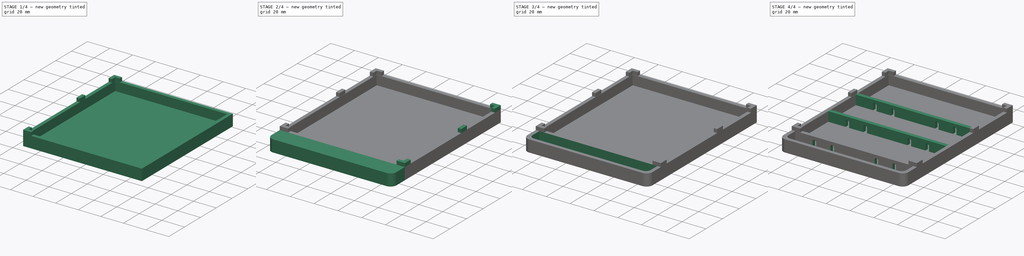
[diagram: build sequence overview — one tinted view per stage of 4, left to right]
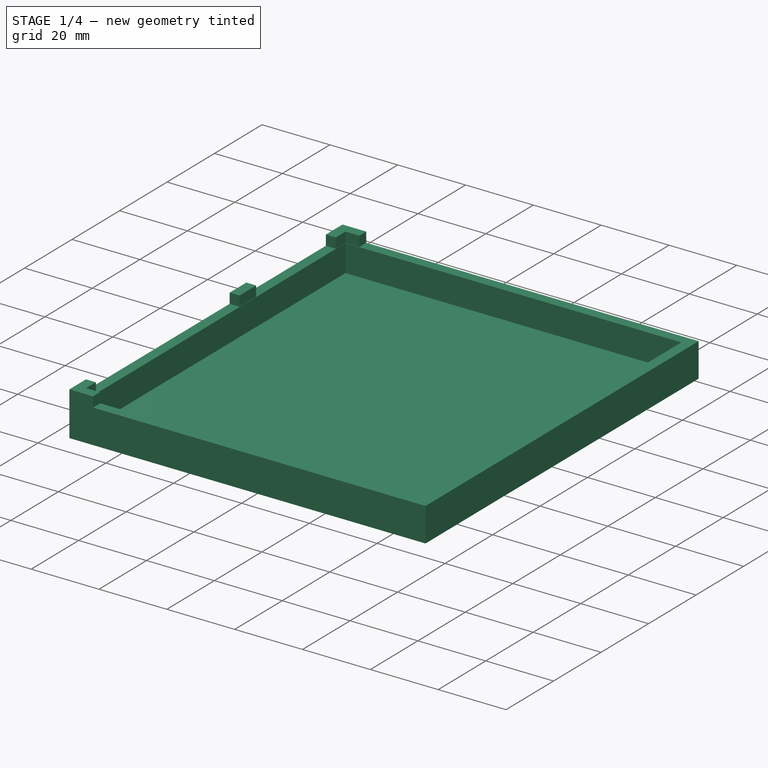
[diagram: stage 1 of 4 — iso view after this stage's code; geometry added in this stage tinted green]
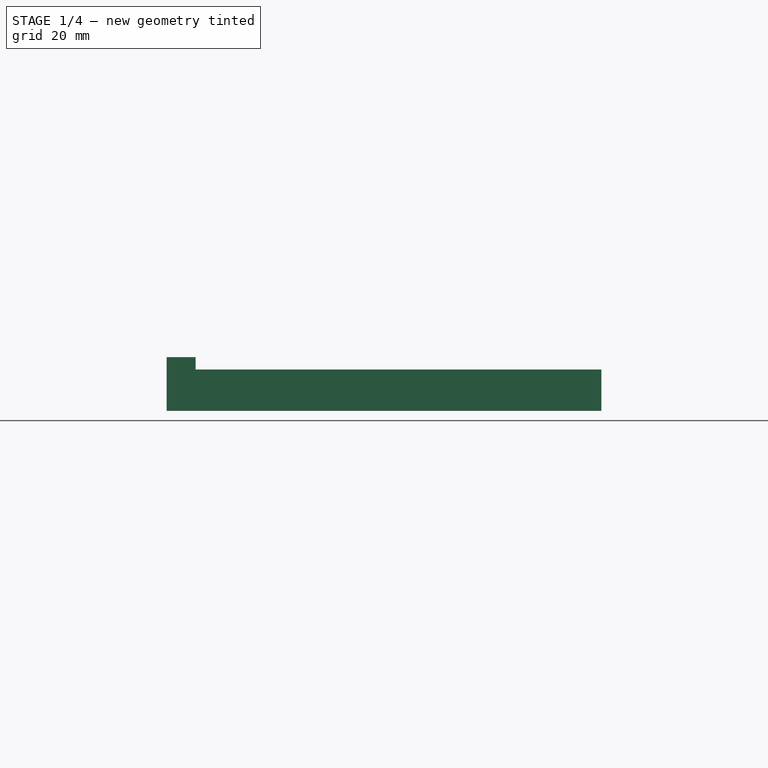
[diagram: stage 1 of 4 — front view after this stage's code; geometry added in this stage tinted green]
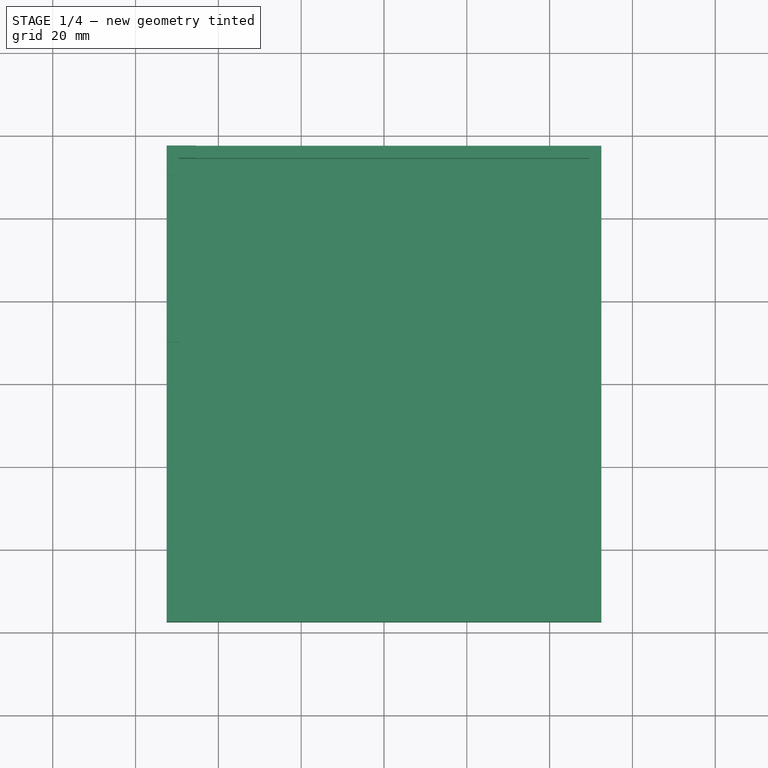
[diagram: stage 1 of 4 — top view after this stage's code; geometry added in this stage tinted green]
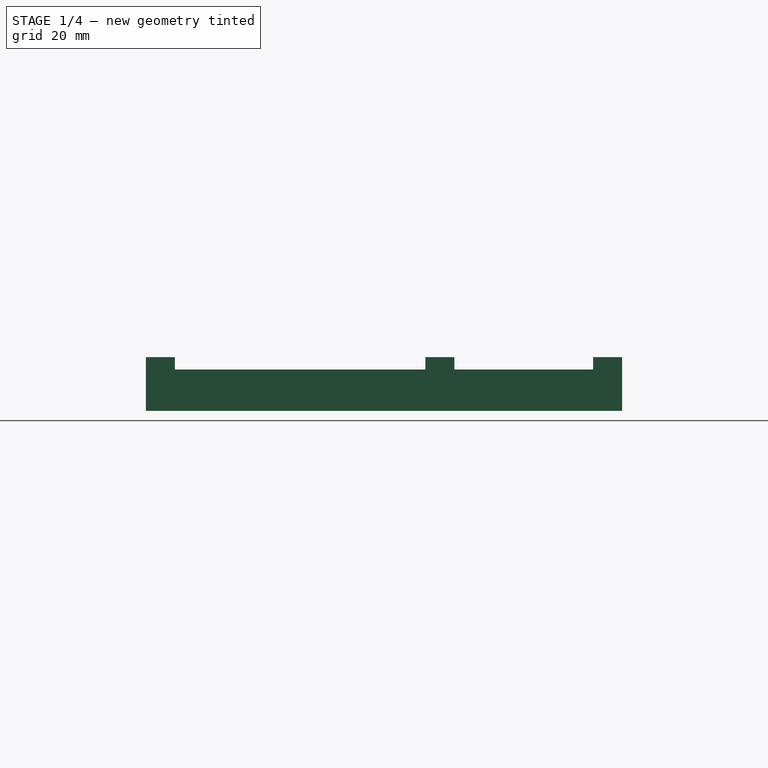
[diagram: stage 1 of 4 — right view after this stage's code; geometry added in this stage tinted green]
FCSTD DOCUMENT  (FreeCAD 0.18R16146 (Git))
Label: Formicarium_basin_M
License: All rights reserved
LicenseURL: http://en.wikipedia.org/wiki/All_rights_reserved
objects: Sketcher::SketchObject×7, PartDesign::Pad×4, PartDesign::Pocket×3, PartDesign::Mirrored×2, PartDesign::Fillet×2, PartDesign::ShapeBinder×1, PartDesign::Body×1
note: 27 computed .brp shape members not serialized (recipe doc carries the construction recipe); baked Part::Feature solids carry a one-line shape summary decoded from their .brp

FEATURE [PartDesign::ShapeBinder] ShapeBinder
  TraceSupport = false
FEATURE [Sketcher::SketchObject] Sketch013
  MapMode = 5
  Support = -> [XY_Plane001]
  sketch-geometry (4):
    g0: LineSegment StartX=-52.5 StartY=57.5 StartZ=0 EndX=52.5 EndY=57.5 EndZ=0
    g1: LineSegment StartX=52.5 StartY=57.5 StartZ=0 EndX=52.5 EndY=-57.5 EndZ=0
    g2: LineSegment StartX=52.5 StartY=-57.5 StartZ=0 EndX=-52.5 EndY=-57.5 EndZ=0
    g3: LineSegment StartX=-52.5 StartY=-57.5 StartZ=0 EndX=-52.5 EndY=57.5 EndZ=0
  constraints (10):
    c: Coincident(g0,g1)
    c: Coincident(g1,g2)
    c: Coincident(g2,g3)
    c: Coincident(g3,g0)
    c: Horizontal(g2)
    c: Vertical(g1)
    c: DistanceY(g1,g1) = 115
    c: DistanceX(g0,g0) = 105
    c: Symmetric(g0,g2,g-1)
    c: Symmetric(g0,g0,g-2)
FEATURE [PartDesign::Pad] Pad002
  Length = 10
  Length2 = 100
  Profile = -> Sketch013
  Reversed = true
  Type = 0
FEATURE [Sketcher::SketchObject] Sketch015
  MapMode = 5
  Support = -> [Pad002]
  sketch-geometry (4):
    g0: LineSegment StartX=-49.5 StartY=54.5 StartZ=0 EndX=49.5 EndY=54.5 EndZ=0
    g1: LineSegment StartX=49.5 StartY=54.5 StartZ=0 EndX=49.5 EndY=-54.5 EndZ=0
    g2: LineSegment StartX=49.5 StartY=-54.5 StartZ=0 EndX=-49.5 EndY=-54.5 EndZ=0
    g3: LineSegment StartX=-49.5 StartY=-54.5 StartZ=0 EndX=-49.5 EndY=54.5 EndZ=0
  constraints (10):
    c: Coincident(g0,g1)
    c: Coincident(g1,g2)
    c: Coincident(g2,g3)
    c: Coincident(g3,g0)
    c: Horizontal(g0)
    c: Vertical(g3)
    c: DistanceX(g2,g2) = 99
    c: DistanceY(g1,g1) = 109
    c: Symmetric(g0,g1,g-1)
    c: Symmetric(g2,g1,g-2)
FEATURE [PartDesign::Pocket] Pocket011
  BaseFeature = -> Pad002
  Length = 8
  Length2 = 100
  Profile = -> Sketch015
  Type = 0
FEATURE [Sketcher::SketchObject] Sketch016
  MapMode = 5
  Support = -> [Pocket011]
  sketch-geometry (16):
    g0: LineSegment StartX=-52.5 StartY=50.5 StartZ=0 EndX=-52.5 EndY=57.5 EndZ=0
    g1: LineSegment StartX=-52.5 StartY=57.5 StartZ=0 EndX=-45.5 EndY=57.5 EndZ=0
    g2: LineSegment StartX=-45.5 StartY=57.5 StartZ=0 EndX=-45.5 EndY=54.6 EndZ=0
    g3: LineSegment StartX=-45.5 StartY=54.6 StartZ=0 EndX=-49.6 EndY=54.6 EndZ=0
    g4: LineSegment StartX=-49.6 StartY=54.6 StartZ=0 EndX=-49.6 EndY=50.5 EndZ=0
    g5: LineSegment StartX=-49.6 StartY=50.5 StartZ=0 EndX=-52.5 EndY=50.5 EndZ=0
    g6: LineSegment StartX=-52.5 StartY=17 StartZ=0 EndX=-49.6 EndY=17 EndZ=0
    g7: LineSegment StartX=-49.6 StartY=17 StartZ=0 EndX=-49.6 EndY=10 EndZ=0
    g8: LineSegment StartX=-49.6 StartY=10 StartZ=0 EndX=-52.5 EndY=10 EndZ=0
    g9: LineSegment StartX=-52.5 StartY=10 StartZ=0 EndX=-52.5 EndY=17 EndZ=0
    g10: LineSegment StartX=-49.6 StartY=-50.5 StartZ=0 EndX=-49.6 EndY=-54.6 EndZ=0
    g11: LineSegment StartX=-49.6 StartY=-54.6 StartZ=0 EndX=-45.5 EndY=-54.6 EndZ=0
    g12: LineSegment StartX=-45.5 StartY=-54.6 StartZ=0 EndX=-45.5 EndY=-57.5 EndZ=0
    g13: LineSegment StartX=-45.5 StartY=-57.5 StartZ=0 EndX=-52.5 EndY=-57.5 EndZ=0
    g14: LineSegment StartX=-52.5 StartY=-57.5 StartZ=0 EndX=-52.5 EndY=-50.5 EndZ=0
    g15: LineSegment StartX=-52.5 StartY=-50.5 StartZ=0 EndX=-49.6 EndY=-50.5 EndZ=0
  constraints (48):
    c: Coincident(g0,g1)
    c: Coincident(g1,g2)
    c: Coincident(g2,g3)
    c: Coincident(g3,g4)
    c: Coincident(g4,g5)
    c: Coincident(g5,g0)
    c: Vertical(g4)
    c: Vertical(g0)
    c: Vertical(g2)
    c: Horizontal(g1)
    c: Horizontal(g5)
    c: Horizontal(g3)
    c: DistanceX(g0,g-1) = 52.5
    c: DistanceY(g-1,g0) = 57.5
    c: DistanceX(g1,g1) = 7
    c: DistanceY(g0,g0) = 7
    c: Equal(g4,g3)
    c: DistanceX(g5,g5) = 2.9
    c: Coincident(g6,g7)
    c: Coincident(g7,g8)
    c: Coincident(g8,g9)
    c: Coincident(g9,g6)
    c: Horizontal(g6)
    c: Horizontal(g8)
    c: Vertical(g9)
    c: DistanceX(g8,g8) = 2.9
    c: DistanceY(g9,g9) = 7
    c: Coincident(g10,g11)
    c: Coincident(g11,g12)
    c: Coincident(g12,g13)
    c: Coincident(g13,g14)
    c: Coincident(g14,g15)
    c: Coincident(g15,g10)
    c: Horizontal(g15)
    c: Horizontal(g11)
    c: Horizontal(g13)
    c: Vertical(g10)
    c: Vertical(g14)
    c: Vertical(g12)
    c: DistanceY(g14,g14) = 7
    c: Equal(g13,g14)
    c: DistanceX(g15,g15) = 2.9
    c: Equal(g15,g12)
    c: DistanceY(g13) = -57.5
    c: Vertical(g14,g6)
    c: Vertical(g6,g0)
    c: DistanceY(g-1,g6) = 17
    c: Equal(g8,g6)
FEATURE [PartDesign::Pad] Pad003
  BaseFeature = -> Pocket011
  Length = 2.99
  Length2 = 100
  Profile = -> Sketch016
  Type = 0
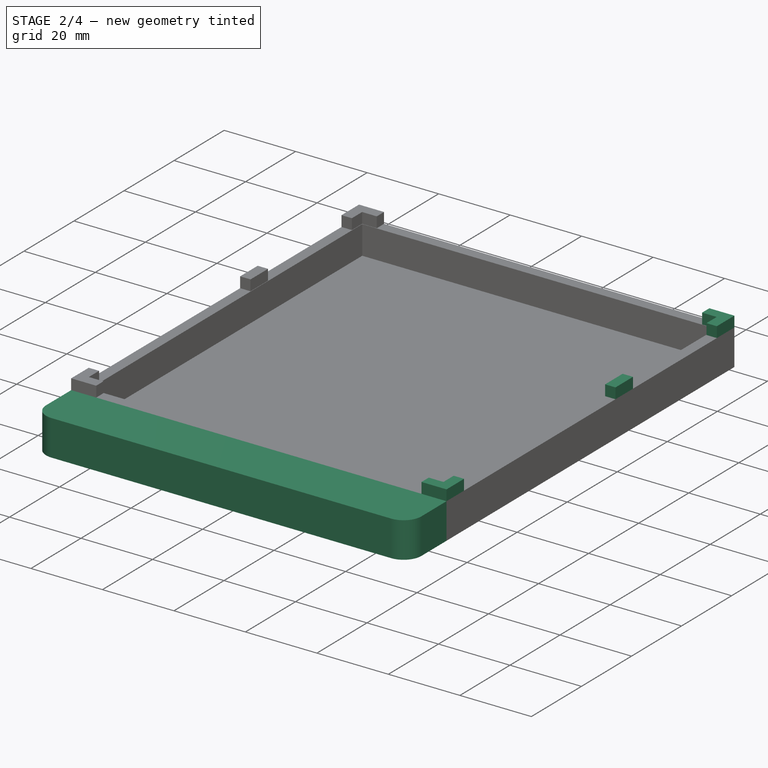
[diagram: stage 2 of 4 — iso view after this stage's code; geometry added in this stage tinted green]
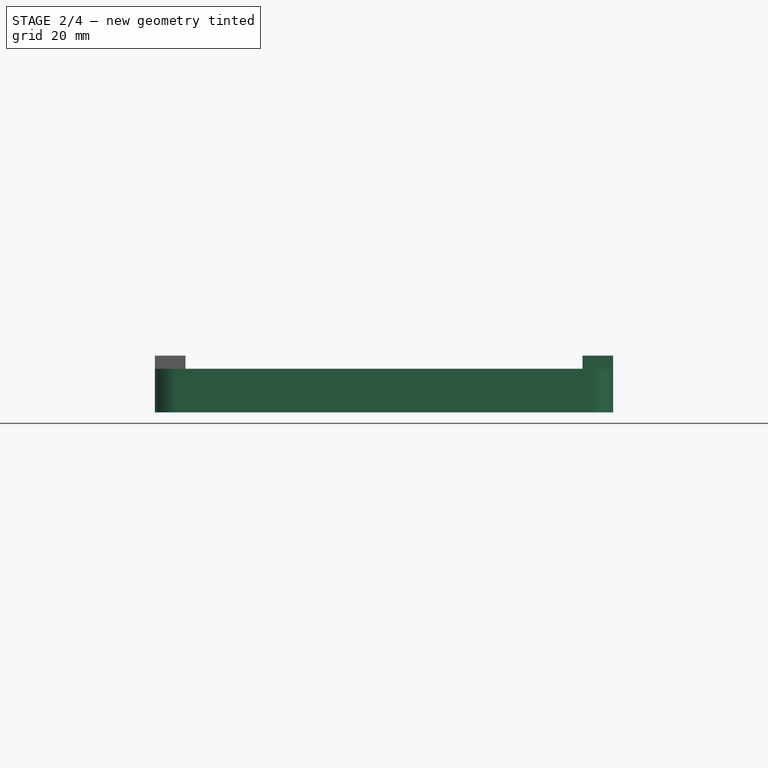
[diagram: stage 2 of 4 — front view after this stage's code; geometry added in this stage tinted green]
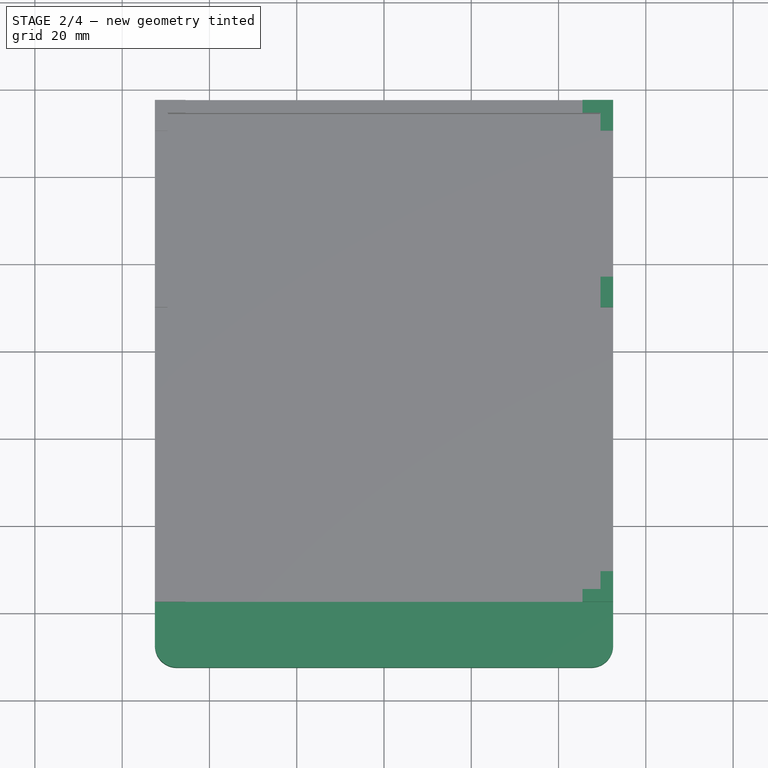
[diagram: stage 2 of 4 — top view after this stage's code; geometry added in this stage tinted green]
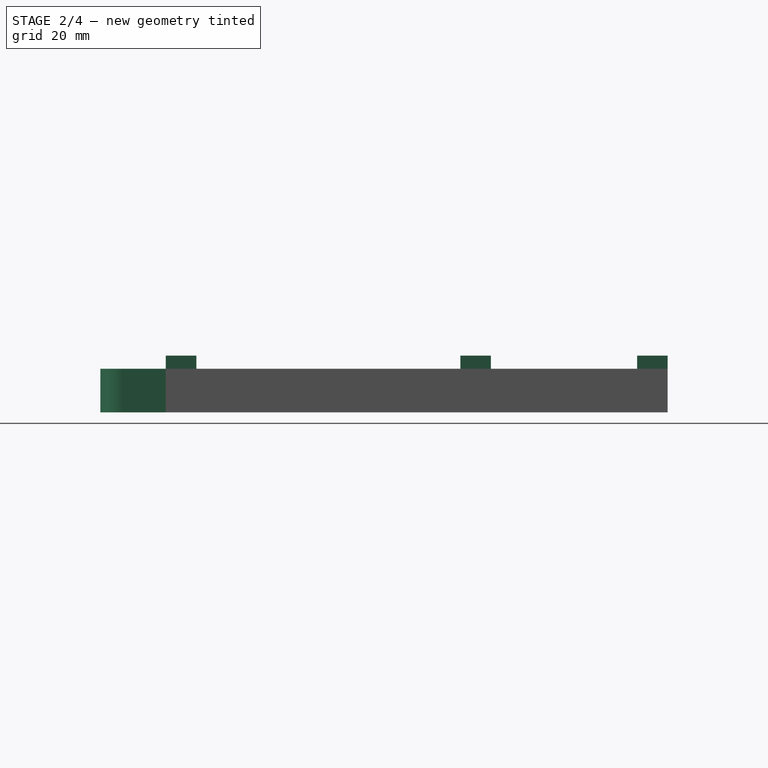
[diagram: stage 2 of 4 — right view after this stage's code; geometry added in this stage tinted green]
FEATURE [PartDesign::Mirrored] Mirrored002
  BaseFeature = -> Pad003
  MirrorPlane = -> Sketch016 [V_Axis]
  Originals = -> [Pad003]
FEATURE [Sketcher::SketchObject] Sketch017
  MapMode = 5
  Support = -> [XY_Plane001]
  sketch-geometry (4):
    g0: LineSegment StartX=-52.5 StartY=-57.5 StartZ=0 EndX=52.5 EndY=-57.5 EndZ=0
    g1: LineSegment StartX=52.5 StartY=-57.5 StartZ=0 EndX=52.5 EndY=-72.5 EndZ=0
    g2: LineSegment StartX=52.5 StartY=-72.5 StartZ=0 EndX=-52.5 EndY=-72.5 EndZ=0
    g3: LineSegment StartX=-52.5 StartY=-72.5 StartZ=0 EndX=-52.5 EndY=-57.5 EndZ=0
  constraints (11):
    c: Coincident(g0,g1)
    c: Coincident(g1,g2)
    c: Coincident(g2,g3)
    c: Coincident(g3,g0)
    c: Horizontal(g0)
    c: Vertical(g1)
    c: Vertical(g3)
    c: DistanceY(g1,g1) = 15
    c: DistanceX(g0,g0) = 105
    c: Symmetric(g1,g2,g-2)
    c: DistanceY(g0,g-1) = 57.5
FEATURE [PartDesign::Pad] Pad004
  BaseFeature = -> Mirrored002
  Length = 10
  Length2 = 100
  Profile = -> Sketch017
  Reversed = true
  Type = 0
FEATURE [PartDesign::Fillet] Fillet
  Base = -> Pad004 [Edge55,Edge66]
  BaseFeature = -> Pad004
  Radius = 5
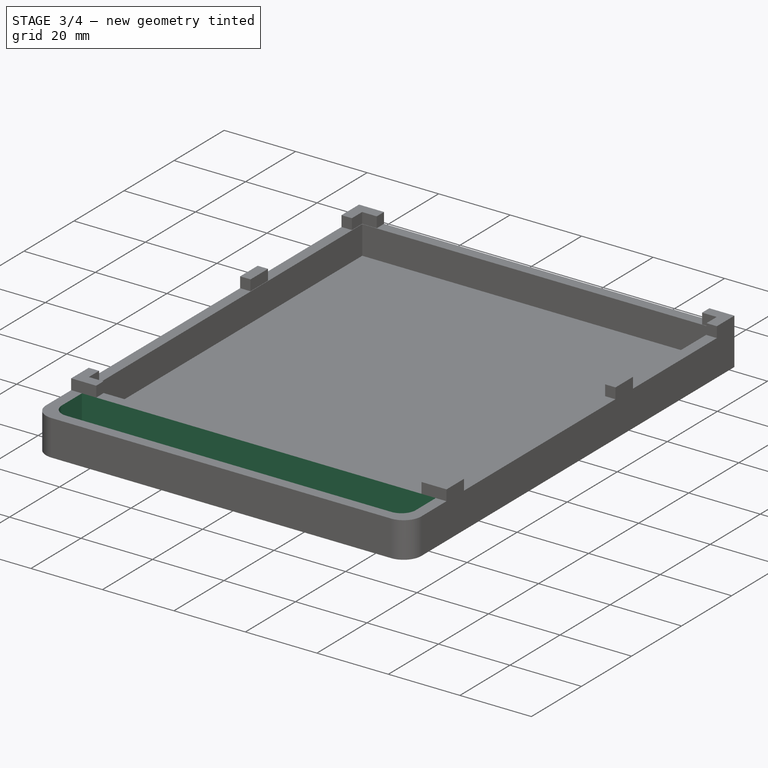
[diagram: stage 3 of 4 — iso view after this stage's code; geometry added in this stage tinted green]
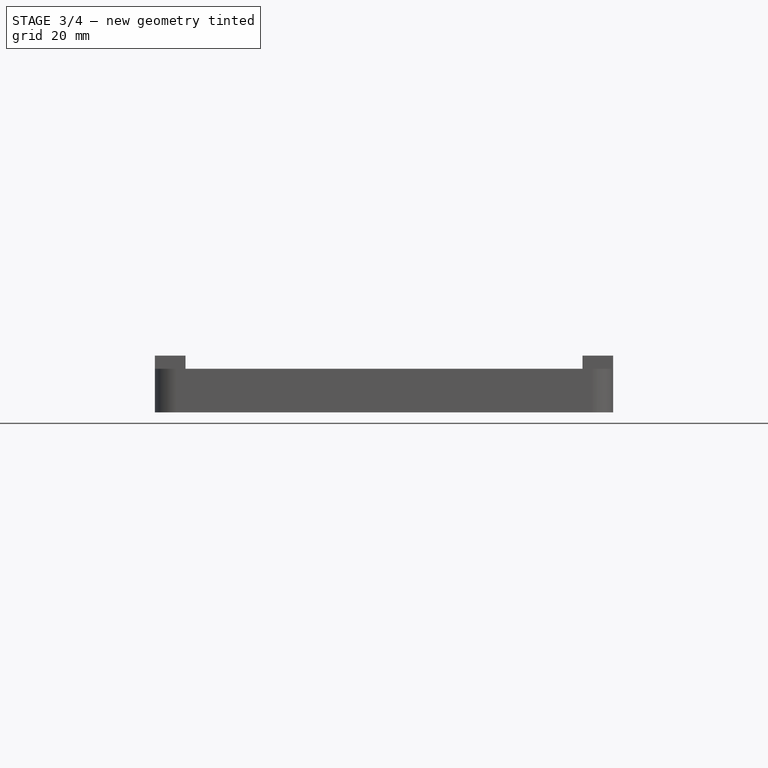
[diagram: stage 3 of 4 — front view after this stage's code; geometry added in this stage tinted green]
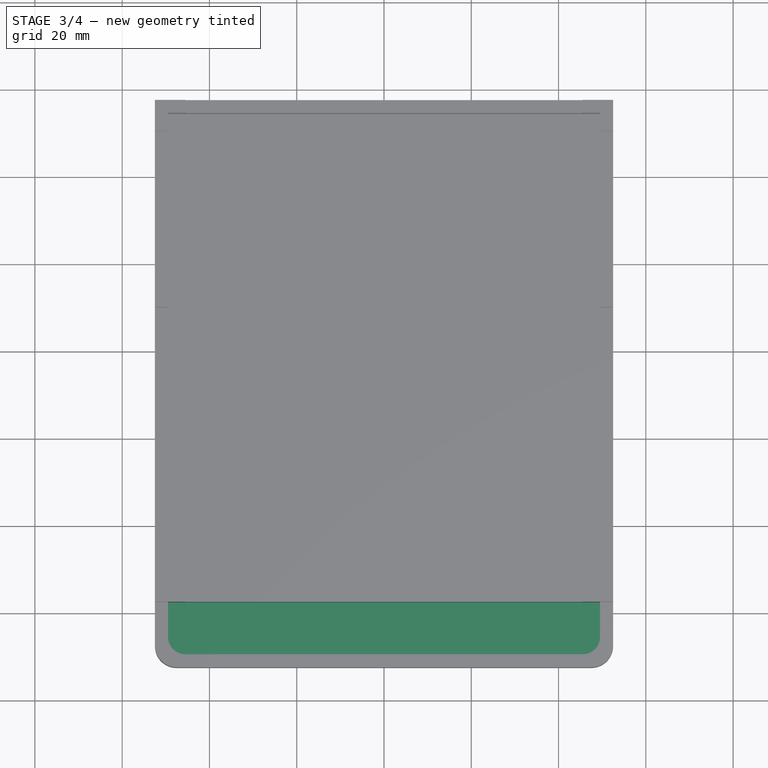
[diagram: stage 3 of 4 — top view after this stage's code; geometry added in this stage tinted green]
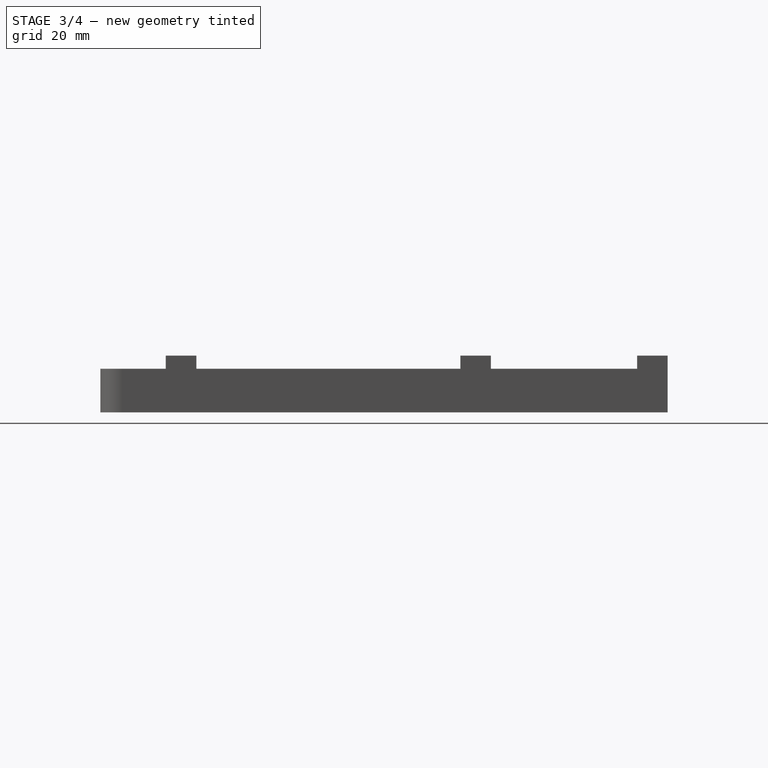
[diagram: stage 3 of 4 — right view after this stage's code; geometry added in this stage tinted green]
FEATURE [Sketcher::SketchObject] Sketch018
  MapMode = 5
  Support = -> [Fillet]
  sketch-geometry (4):
    g0: LineSegment StartX=-49.5 StartY=-57.5 StartZ=0 EndX=49.5 EndY=-57.5 EndZ=0
    g1: LineSegment StartX=49.5 StartY=-57.5 StartZ=0 EndX=49.5 EndY=-69.5 EndZ=0
    g2: LineSegment StartX=49.5 StartY=-69.5 StartZ=0 EndX=-49.5 EndY=-69.5 EndZ=0
    g3: LineSegment StartX=-49.5 StartY=-69.5 StartZ=0 EndX=-49.5 EndY=-57.5 EndZ=0
  constraints (11):
    c: Coincident(g0,g1)
    c: Coincident(g1,g2)
    c: Coincident(g2,g3)
    c: Coincident(g3,g0)
    c: Horizontal(g0)
    c: Vertical(g1)
    c: Vertical(g3)
    c: DistanceY(g1,g1) = 12
    c: DistanceX(g2,g2) = 99
    c: Symmetric(g1,g2,g-2)
    c: DistanceY(g0,g-1) = 57.5
FEATURE [PartDesign::Pocket] Pocket012
  BaseFeature = -> Fillet
  Length = 8
  Length2 = 100
  Profile = -> Sketch018
  Type = 0
FEATURE [PartDesign::Fillet] Fillet001
  Base = -> Pocket012 [Edge36,Edge34]
  BaseFeature = -> Pocket012
  Radius = 4
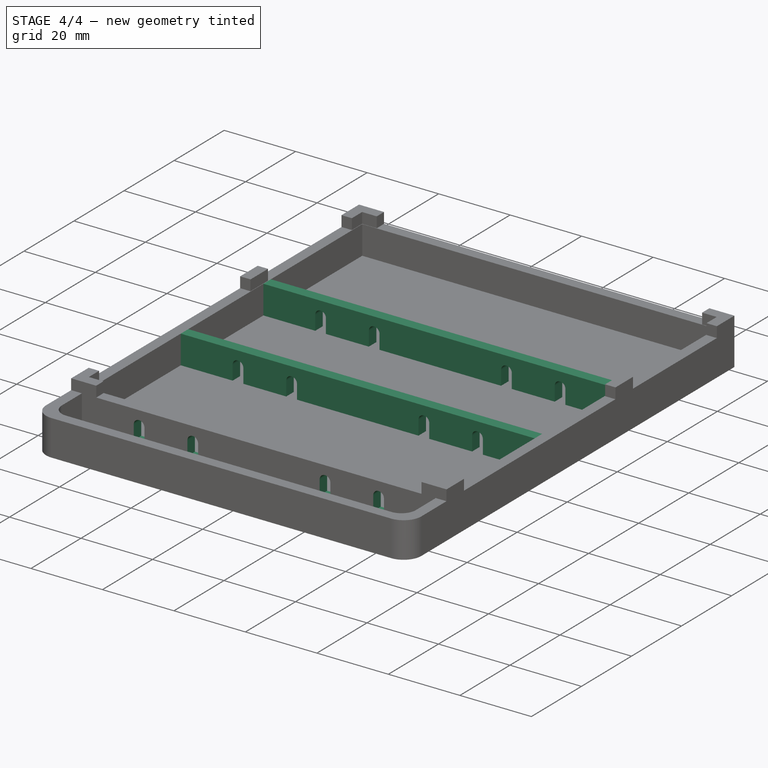
[diagram: stage 4 of 4 — iso view after this stage's code; geometry added in this stage tinted green]
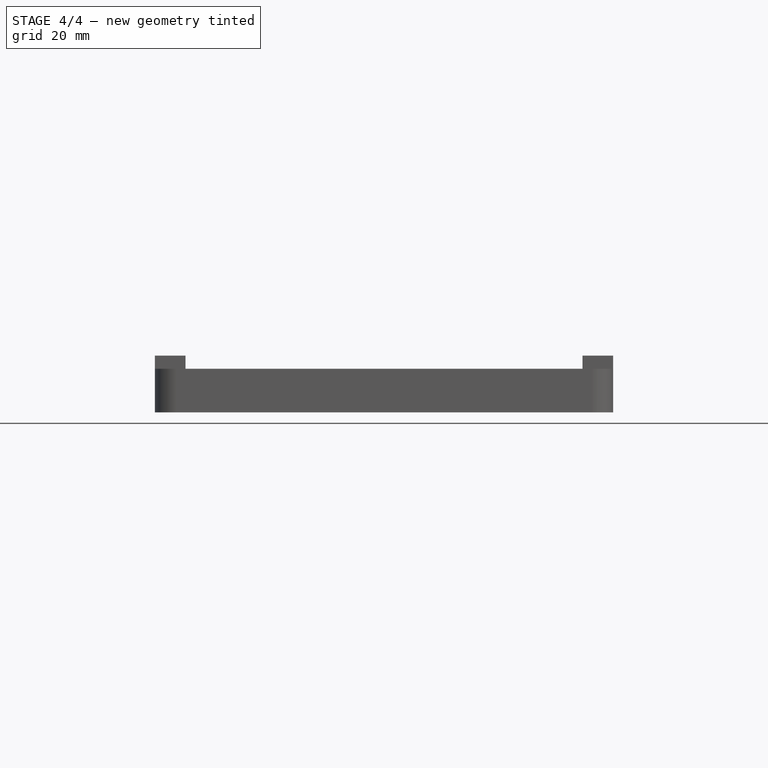
[diagram: stage 4 of 4 — front view after this stage's code; geometry added in this stage tinted green]
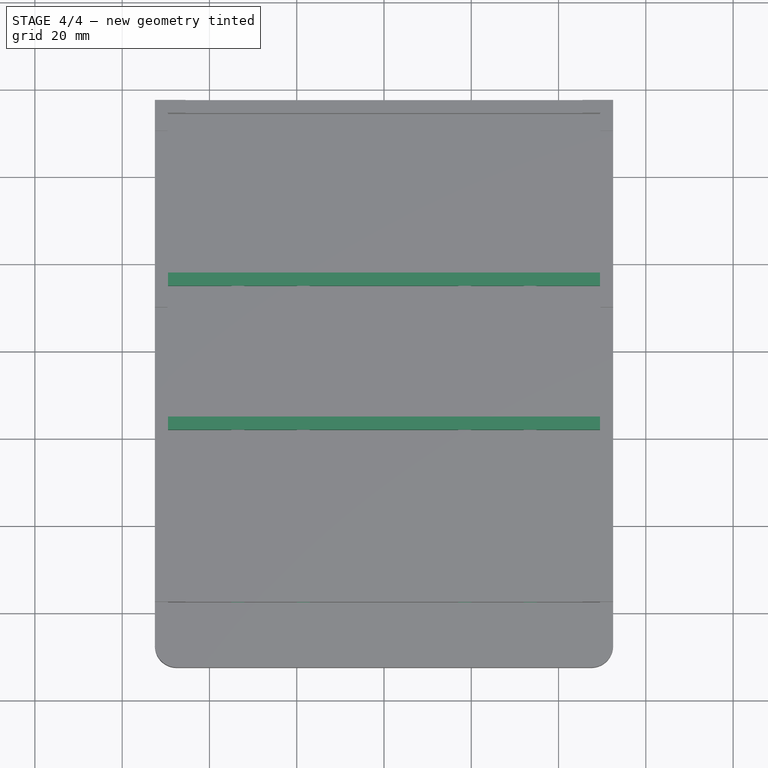
[diagram: stage 4 of 4 — top view after this stage's code; geometry added in this stage tinted green]
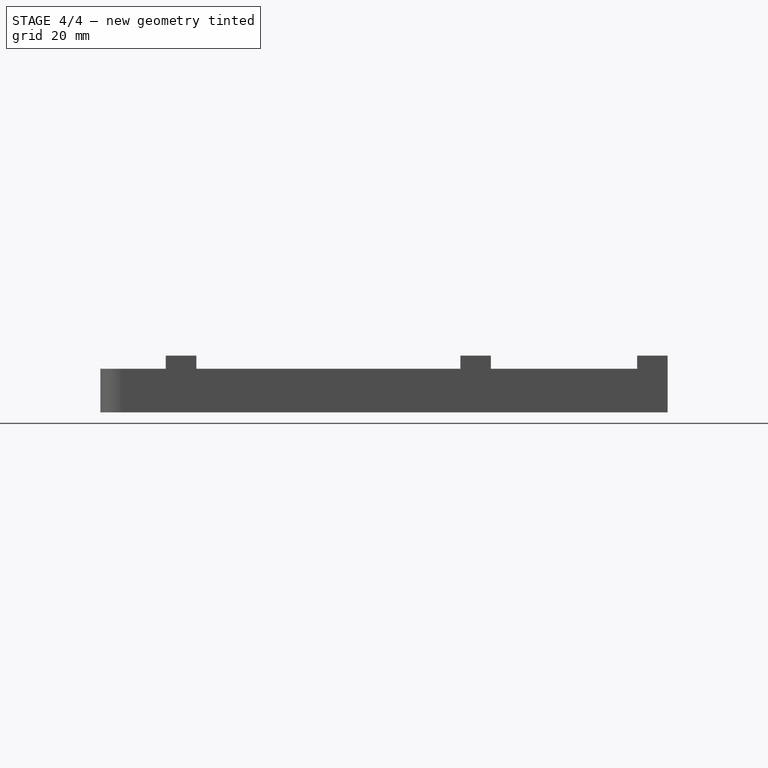
[diagram: stage 4 of 4 — right view after this stage's code; geometry added in this stage tinted green]
FEATURE [Sketcher::SketchObject] Sketch019
  MapMode = 5
  Support = -> [XY_Plane001]
  sketch-geometry (8):
    g0: LineSegment StartX=-49.5 StartY=-15 StartZ=0 EndX=49.5 EndY=-15 EndZ=0
    g1: LineSegment StartX=49.5 StartY=-15 StartZ=0 EndX=49.5 EndY=-18 EndZ=0
    g2: LineSegment StartX=49.5 StartY=-18 StartZ=0 EndX=-49.5 EndY=-18 EndZ=0
    g3: LineSegment StartX=-49.5 StartY=-18 StartZ=0 EndX=-49.5 EndY=-15 EndZ=0
    g4: LineSegment StartX=-49.5 StartY=18 StartZ=0 EndX=49.5 EndY=18 EndZ=0
    g5: LineSegment StartX=49.5 StartY=18 StartZ=0 EndX=49.5 EndY=15 EndZ=0
    g6: LineSegment StartX=49.5 StartY=15 StartZ=0 EndX=-49.5 EndY=15 EndZ=0
    g7: LineSegment StartX=-49.5 StartY=15 StartZ=0 EndX=-49.5 EndY=18 EndZ=0
  constraints (22):
    c: Coincident(g0,g1)
    c: Coincident(g1,g2)
    c: Coincident(g2,g3)
    c: Coincident(g3,g0)
    c: Horizontal(g2)
    c: Vertical(g1)
    c: Vertical(g3)
    c: Coincident(g4,g5)
    c: Coincident(g5,g6)
    c: Coincident(g6,g7)
    c: Coincident(g7,g4)
    c: Horizontal(g6)
    c: Vertical(g5)
    c: Vertical(g7)
    c: DistanceY(g5,g5) = 3
    c: Equal(g1,g5)
    c: DistanceX(g4,g4) = 99
    c: Equal(g4,g0)
    c: Symmetric(g4,g4,g-2)
    c: Symmetric(g0,g0,g-2)
    c: DistanceY(g-1,g6) = 15
    c: DistanceY(g0) = -15
FEATURE [PartDesign::Pad] Pad005
  BaseFeature = -> Fillet001
  Length = 8
  Length2 = 100
  Profile = -> Sketch019
  Reversed = true
  Type = 0
FEATURE [Sketcher::SketchObject] Sketch020
  MapMode = 5
  Placement = pos=(0,-57.5,0) rot=(1,0,0;1.5708rad)
  Support = -> [Pad005]
  sketch-geometry (8):
    g0: LineSegment StartX=-35 StartY=-4 StartZ=0 EndX=-35 EndY=-8 EndZ=0
    g1: LineSegment StartX=-35 StartY=-8 StartZ=0 EndX=-32 EndY=-8 EndZ=0
    g2: LineSegment StartX=-32 StartY=-8 StartZ=0 EndX=-32 EndY=-4 EndZ=0
    g3: LineSegment StartX=-20 StartY=-4 StartZ=0 EndX=-20 EndY=-8 EndZ=0
    g4: LineSegment StartX=-20 StartY=-8 StartZ=0 EndX=-17 EndY=-8 EndZ=0
    g5: LineSegment StartX=-17 StartY=-8 StartZ=0 EndX=-17 EndY=-4 EndZ=0
    g6: ArcOfCircle CenterX=-33.5 CenterY=-4 CenterZ=0 NormalX=0 NormalY=0 NormalZ=1 AngleXU=0 Radius=1.5 StartAngle=0 EndAngle=3.14159
    g7: ArcOfCircle CenterX=-18.5 CenterY=-4 CenterZ=0 NormalX=0 NormalY=0 NormalZ=1 AngleXU=0 Radius=1.5 StartAngle=0 EndAngle=3.14159
  constraints (26):
    c: Coincident(g6,g0)
    c: Coincident(g6,g2)
    c: Coincident(g7,g3)
    c: Coincident(g5,g7)
    c: Horizontal(g4)
    c: Horizontal(g1)
    c: Vertical(g5)
    c: Vertical(g3)
    c: Vertical(g2)
    c: Vertical(g0)
    c: Horizontal(g0,g6)
    c: Horizontal(g6,g2)
    c: Horizontal(g7,g5)
    c: Horizontal(g5,g3)
    c: DistanceX(g1,g1) = 3
    c: Coincident(g1,g2)
    c: Coincident(g1,g0)
    c: Coincident(g5,g4)
    c: Coincident(g4,g3)
    c: DistanceY(g2,g2) = 4
    c: Equal(g3,g0)
    c: Equal(g4,g1)
    c: DistanceY(g3,g-1) = 8
    c: DistanceY(g0,g-1) = 8
    c: DistanceX(g3,g-1) = 20
    c: DistanceX(g0,g-1) = 35
FEATURE [PartDesign::Pocket] Pocket013
  BaseFeature = -> Pad005
  Length = 75.5
  Length2 = 100
  Profile = -> Sketch020
  Type = 0
FEATURE [PartDesign::Mirrored] Mirrored003
  BaseFeature = -> Pocket013
  MirrorPlane = -> Sketch020 [V_Axis]
  Originals = -> [Pocket013]
FEATURE [PartDesign::Body] Body001  label="Basin"
  Group = -> [ShapeBinder,Sketch013,Pad002,Sketch015,Pocket011,Sketch016,Pad003,Mirrored002,Sketch017,Pad004,Fillet,Sketch018,Pocket012,Fillet001,Sketch019,Pad005,Sketch020,Pocket013,Mirrored003]
  Origin = -> Origin001
  Tip = -> Mirrored003
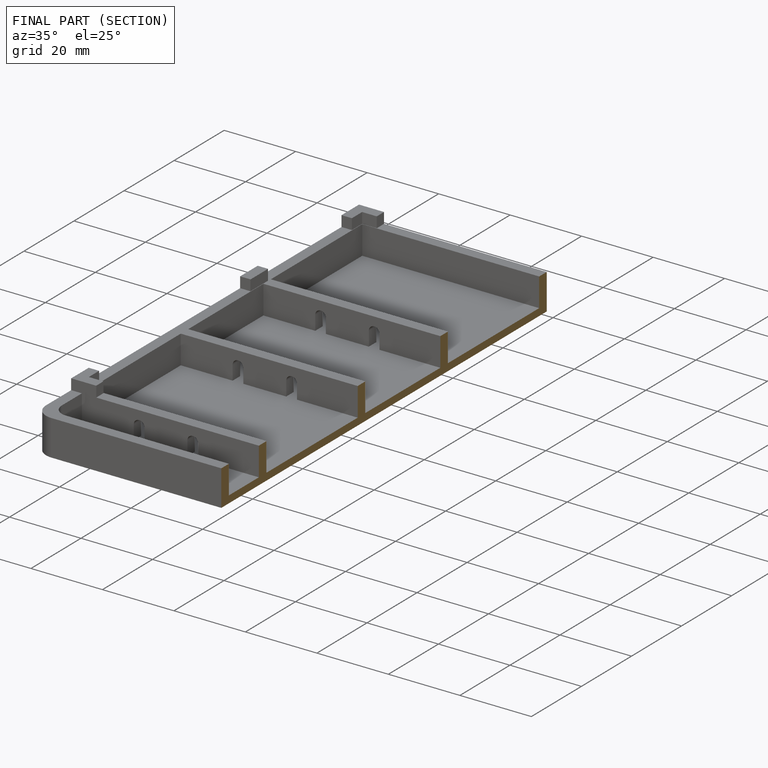
[diagram: finished part — half-section view (interior)]
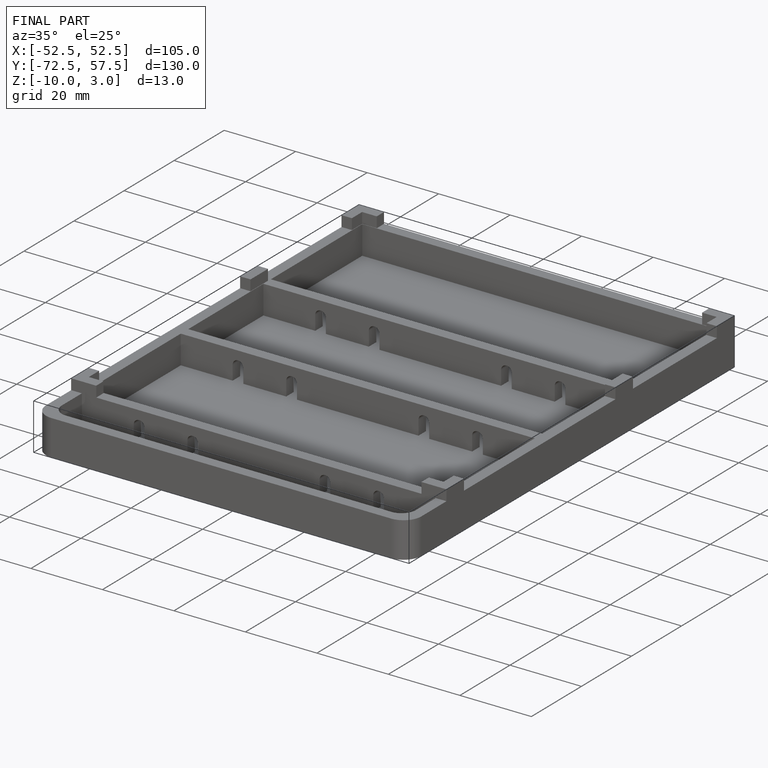
[diagram: finished part — iso view with bounding-box wireframe]
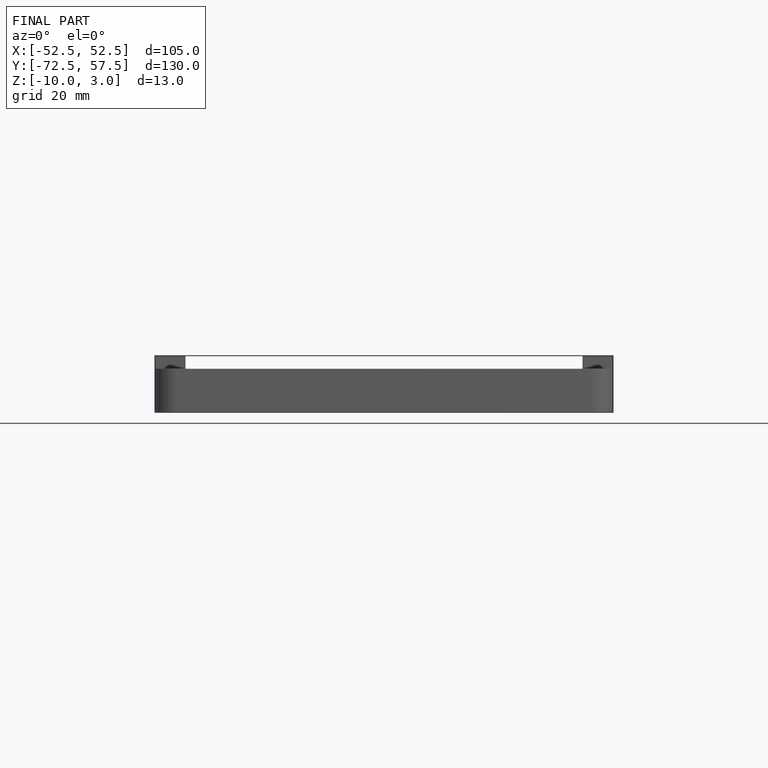
[diagram: finished part — front view with bounding-box wireframe]
